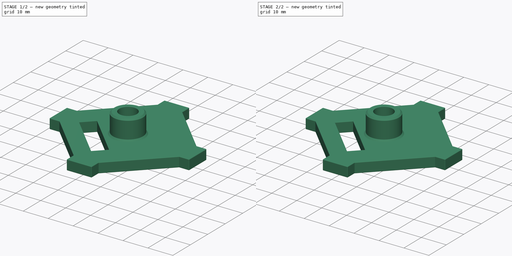
[diagram: build sequence overview — one tinted view per stage of 2, left to right]
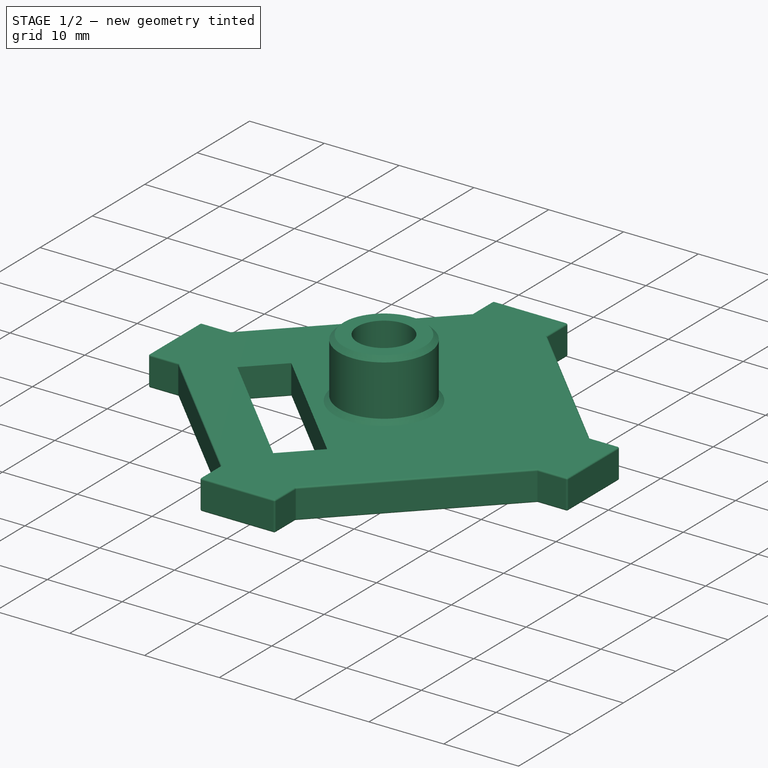
[diagram: stage 1 of 2 — iso view after this stage's code; geometry added in this stage tinted green]
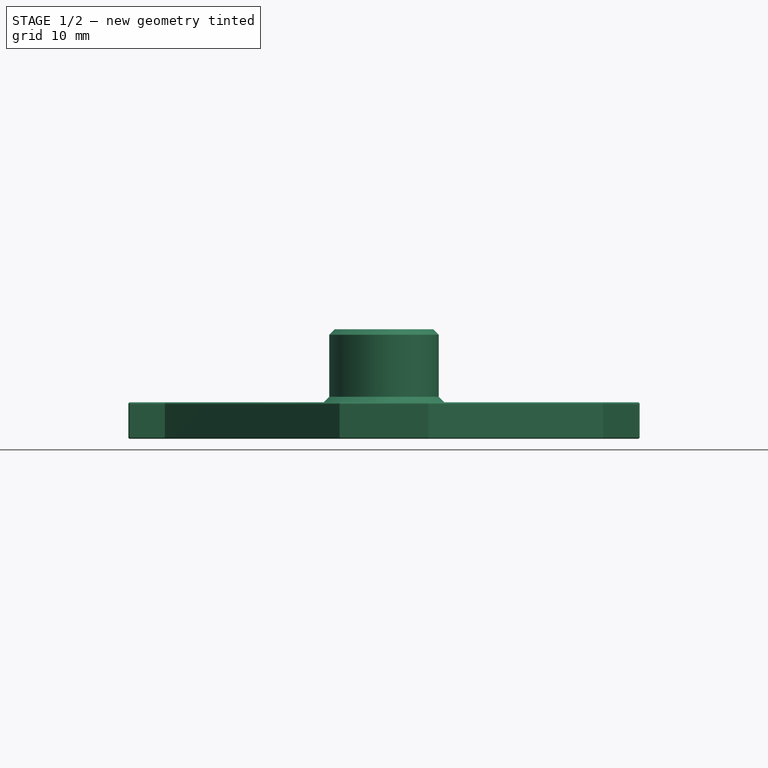
[diagram: stage 1 of 2 — front view after this stage's code; geometry added in this stage tinted green]
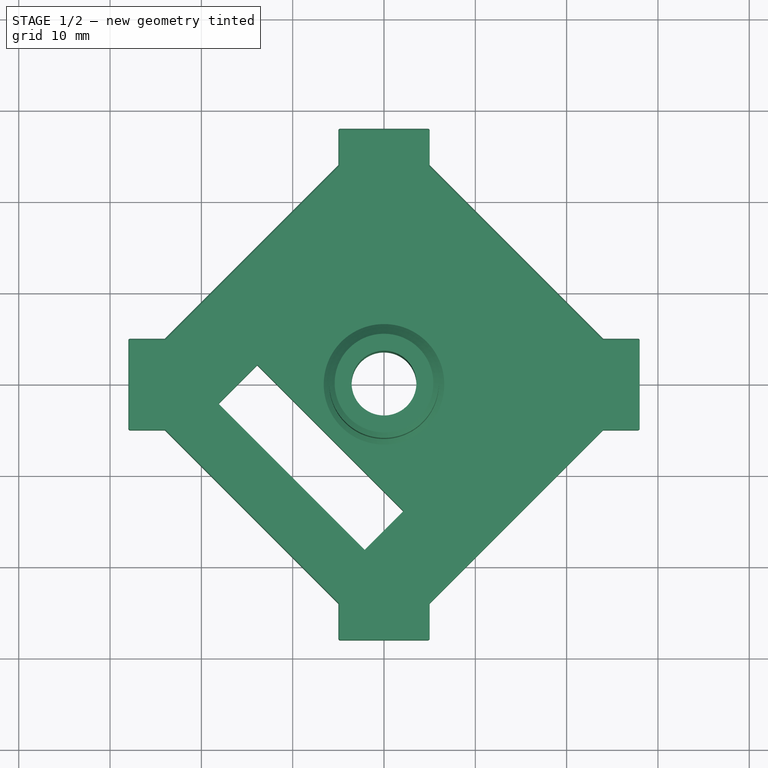
[diagram: stage 1 of 2 — top view after this stage's code; geometry added in this stage tinted green]
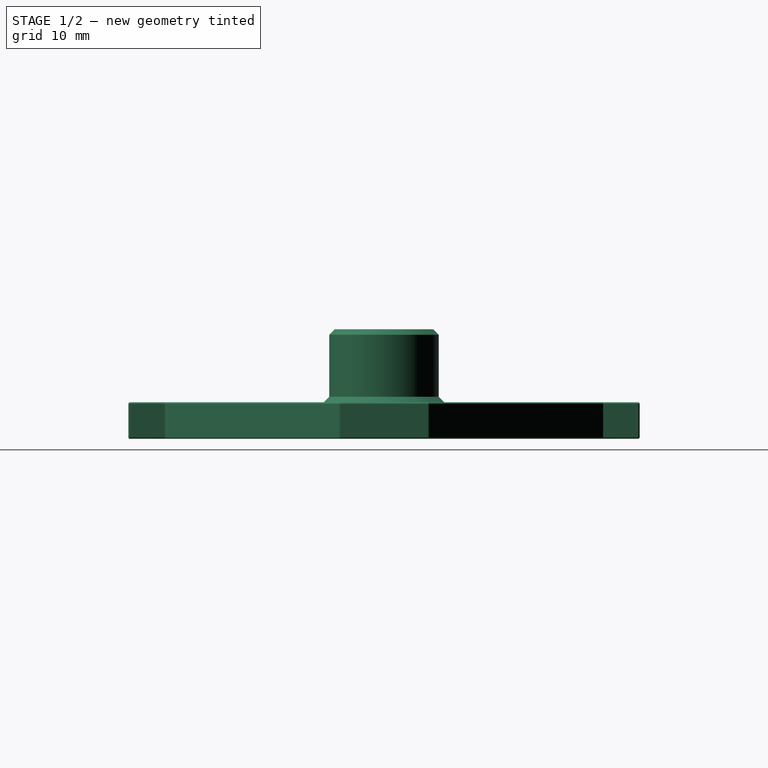
[diagram: stage 1 of 2 — right view after this stage's code; geometry added in this stage tinted green]
FCSTD DOCUMENT  (FreeCAD 0.18R16131 (Git))
Label: Turnstile_cap_V2
License: All rights reserved
LicenseURL: http://en.wikipedia.org/wiki/All_rights_reserved
objects: Sketcher::SketchObject×5, PartDesign::Pocket×3, PartDesign::Fillet×3, PartDesign::Pad×2, App::Part×1, PartDesign::Body×1, PartDesign::Chamfer×1
note: 20 computed .brp shape members not serialized (recipe doc carries the construction recipe); baked Part::Feature solids carry a one-line shape summary decoded from their .brp

FEATURE [App::Part] Part
  Group = -> [Body]
  Origin = -> Origin
FEATURE [PartDesign::Body] Body
  Group = -> [Sketch001,Pad,Sketch,Pad001,Sketch002,Pocket,Sketch003,Pocket001,Fillet,Chamfer,Sketch004,Pocket002,Fillet001,Fillet002]
  Origin = -> Origin001
  Tip = -> Fillet002
FEATURE [Sketcher::SketchObject] Sketch001  label="contour"
  MapMode = 5
  Placement = pos=(0,0,0) rot=(1,0,0;3.14159rad)
  Support = -> [Chamfer]
  sketch-geometry (16):
    g0: LineSegment StartX=-5 StartY=28 StartZ=0 EndX=5 EndY=28 EndZ=0
    g1: LineSegment StartX=28 StartY=5 StartZ=0 EndX=28 EndY=-5 EndZ=0
    g2: LineSegment StartX=5 StartY=-28 StartZ=0 EndX=-5 EndY=-28 EndZ=0
    g3: LineSegment StartX=-28 StartY=-5 StartZ=0 EndX=-28 EndY=5 EndZ=0
    g4: LineSegment StartX=-28 StartY=5 StartZ=0 EndX=-24 EndY=5 EndZ=0
    g5: LineSegment StartX=-24 StartY=5 StartZ=0 EndX=-5 EndY=24 EndZ=0
    g6: LineSegment StartX=-5 StartY=24 StartZ=0 EndX=-5 EndY=28 EndZ=0
    g7: LineSegment StartX=5 StartY=28 StartZ=0 EndX=5 EndY=24 EndZ=0
    g8: LineSegment StartX=5 StartY=24 StartZ=0 EndX=24 EndY=5 EndZ=0
    g9: LineSegment StartX=24 StartY=5 StartZ=0 EndX=28 EndY=5 EndZ=0
    g10: LineSegment StartX=-28 StartY=-5 StartZ=0 EndX=-24 EndY=-5 EndZ=0
    g11: LineSegment StartX=-24 StartY=-5 StartZ=0 EndX=-5 EndY=-24 EndZ=0
    g12: LineSegment StartX=-5 StartY=-24 StartZ=0 EndX=-5 EndY=-28 EndZ=0
    g13: LineSegment StartX=5 StartY=-28 StartZ=0 EndX=5 EndY=-24 EndZ=0
    g14: LineSegment StartX=5 StartY=-24 StartZ=0 EndX=24 EndY=-5 EndZ=0
    g15: LineSegment StartX=24 StartY=-5 StartZ=0 EndX=28 EndY=-5 EndZ=0
  constraints (44):
    c: Symmetric(g0,g0,g-2)
    c: Symmetric(g2,g2,g-2)
    c: Symmetric(g3,g3,g-1)
    c: Symmetric(g1,g1,g-1)
    c: DistanceY(g-1,g0) = 28
    c: DistanceY(g2,g-1) = 28
    c: DistanceX(g3,g-1) = 28
    c: DistanceX(g-1,g1) = 28
    c: DistanceX(g0,g0) = 10
    c: DistanceX(g2,g2) = 10
    c: DistanceY(g3,g3) = 10
    c: DistanceY(g1,g1) = 10
    c: Coincident(g4,g5)
    c: Coincident(g5,g6)
    c: Coincident(g3,g4)
    c: Coincident(g0,g6)
    c: Vertical(g6)
    c: Horizontal(g4)
    c: DistanceX(g4,g4) = 4
    c: DistanceY(g6,g6) = 4
    c: Coincident(g7,g8)
    c: Coincident(g8,g9)
    c: Coincident(g7,g0)
    c: Horizontal(g9)
    c: Vertical(g7)
    c: DistanceX(g9,g9) = 4
    c: DistanceY(g7,g7) = 4
    c: Coincident(g9,g1)
    c: Coincident(g10,g11)
    c: Coincident(g11,g12)
    c: Coincident(g10,g3)
    c: Coincident(g12,g2)
    c: Horizontal(g10)
    c: Vertical(g12)
    c: DistanceX(g10,g10) = 4
    c: DistanceY(g12,g12) = 4
    c: Coincident(g13,g14)
    c: Coincident(g14,g15)
    c: Coincident(g1,g15)
    c: Coincident(g13,g2)
    c: Vertical(g13)
    c: Horizontal(g15)
    c: DistanceX(g15,g15) = 4
    c: DistanceY(g13,g13) = 4
FEATURE [PartDesign::Pad] Pad
  Length = 4
  Length2 = 100
  Profile = -> Sketch001
  Type = 0
FEATURE [Sketcher::SketchObject] Sketch
  MapMode = 5
  Placement = pos=(28,0,0) rot=(0.57735,0.57735,0.57735;2.0944rad)
  Support = -> [Pad]
  sketch-geometry (1):
    g0: Circle CenterX=0 CenterY=0 CenterZ=0 NormalX=0 NormalY=0 NormalZ=1 AngleXU=0 Radius=6
  constraints (2):
    c: Coincident(g0,g-1)
    c: Radius(g0) = 6
FEATURE [PartDesign::Pad] Pad001
  BaseFeature = -> Pad
  Length = 8
  Length2 = 100
  Profile = -> Sketch
  Type = 0
FEATURE [Sketcher::SketchObject] Sketch002
  MapMode = 5
  Placement = pos=(0,0,12) rot=(0,0,1;0rad)
  Support = -> [Pad001]
  sketch-geometry (1):
    g0: Circle CenterX=0 CenterY=0 CenterZ=0 NormalX=0 NormalY=0 NormalZ=1 AngleXU=0 Radius=3.55
  constraints (2):
    c: Coincident(g0,g-1)
    c: Radius(g0) = 3.55
FEATURE [PartDesign::Pocket] Pocket
  BaseFeature = -> Pad001
  Length = 20
  Length2 = 100
  Profile = -> Sketch002
  Type = 0
FEATURE [Sketcher::SketchObject] Sketch003
  ExternalGeometry = -> [Pocket]
  MapMode = 5
  Support = -> [Pocket]
  sketch-geometry (9):
    g0: GeomPoint X=0 Y=24 Z=0
    g1: Circle CenterX=0 CenterY=24 CenterZ=0 NormalX=0 NormalY=0 NormalZ=1 AngleXU=0 Radius=1.1
    g2: GeomPoint X=24 Y=0 Z=0
    g3: GeomPoint X=24 Y=0 Z=0
    g4: GeomPoint X=0 Y=-24 Z=0
    g5: Circle CenterX=24 CenterY=0 CenterZ=0 NormalX=0 NormalY=0 NormalZ=1 AngleXU=0 Radius=1.1
    g6: GeomPoint X=-24 Y=0 Z=0
    g7: Circle CenterX=-24 CenterY=0 CenterZ=0 NormalX=0 NormalY=0 NormalZ=1 AngleXU=0 Radius=1.1
    g8: Circle CenterX=0 CenterY=-24 CenterZ=0 NormalX=0 NormalY=0 NormalZ=1 AngleXU=0 Radius=1.1
  constraints (17):
    c: PointOnObject(g0,g-2)
    c: DistanceY(g0,g-4) = 4
    c: Coincident(g1,g0)
    c: Radius(g1) = 1.1
    c: PointOnObject(g2,g-1)
    c: PointOnObject(g4,g-2)
    c: DistanceY(g-7,g4) = 4
    c: DistanceX(g3,g-8) = 4
    c: Coincident(g3,g5)
    c: Coincident(g3,g2)
    c: PointOnObject(g6,g-1)
    c: DistanceX(g-5,g6) = 4
    c: Coincident(g7,g6)
    c: Radius(g7) = 1.1
    c: Coincident(g8,g4)
    c: Radius(g8) = 1.1
    c: Radius(g5) = 1.1
FEATURE [PartDesign::Pocket] Pocket001
  BaseFeature = -> Pocket
  Length = 3.5
  Length2 = 100
  Profile = -> Sketch003
  Type = 0
FEATURE [PartDesign::Fillet] Fillet
  Base = -> Pocket001 [Edge41,Edge23,Edge54,Edge40,Edge38,Edge22,Edge20,Edge36,Edge18,Edge48,Edge34,Edge16,Edge46,Edge32,Edge30,Edge12,Edge9,Edge10,Edge2,Edge4,Edge7,Edge29,Edge31,Edge33,Edge35,Edge37,Edge39,Edge53,Edge3,Edge1,Edge6,Edge11,Edge13,Edge45,Edge15,Edge47,Edge19,Edge17,Edge21,Edge14]
  BaseFeature = -> Pocket001
  Radius = 0.2
FEATURE [PartDesign::Chamfer] Chamfer
  Base = -> Fillet [Face50]
  BaseFeature = -> Fillet
  Size = 0.6
FEATURE [Sketcher::SketchObject] Sketch004
  MapMode = 5
  Placement = pos=(0,0,4) rot=(0,0,1;0rad)
  Support = -> [Chamfer]
  sketch-geometry (6):
    g0: GeomPoint X=-16 Y=0 Z=0
    g1: GeomPoint X=0 Y=-16 Z=0
    g2: LineSegment StartX=-13.8787 StartY=2.12132 StartZ=0 EndX=-18.1213 EndY=-2.12132 EndZ=0
    g3: LineSegment StartX=2.12132 StartY=-13.8787 StartZ=0 EndX=-2.12132 EndY=-18.1213 EndZ=0
    g4: LineSegment StartX=-18.1213 StartY=-2.12132 StartZ=0 EndX=-2.12132 EndY=-18.1213 EndZ=0
    g5: LineSegment StartX=-13.8787 StartY=2.12132 StartZ=0 EndX=2.12132 EndY=-13.8787 EndZ=0
  constraints (14):
    c: PointOnObject(g0,g-1)
    c: PointOnObject(g1,g-2)
    c: DistanceX(g0,g-1) = 16
    c: DistanceY(g1,g-1) = 16
    c: Angle(g-1,g2) = 0.785398
    c: Angle(g-2,g3) = 2.35619
    c: Symmetric(g3,g3,g1)
    c: Coincident(g4,g2)
    c: Coincident(g2,g5)
    c: Coincident(g5,g3)
    c: Coincident(g3,g4)
    c: Symmetric(g2,g2,g0)
    c: Distance(g2,g2) = 6
    c: Distance(g3,g3) = 6
FEATURE [PartDesign::Pocket] Pocket002
  BaseFeature = -> Chamfer
  Length = 5
  Length2 = 100
  Profile = -> Sketch004
  Type = 0
FEATURE [PartDesign::Fillet] Fillet001
  Base = -> Pocket002 [Edge69,Edge68,Edge65,Edge71]
  BaseFeature = -> Pocket002
  Radius = 0.2
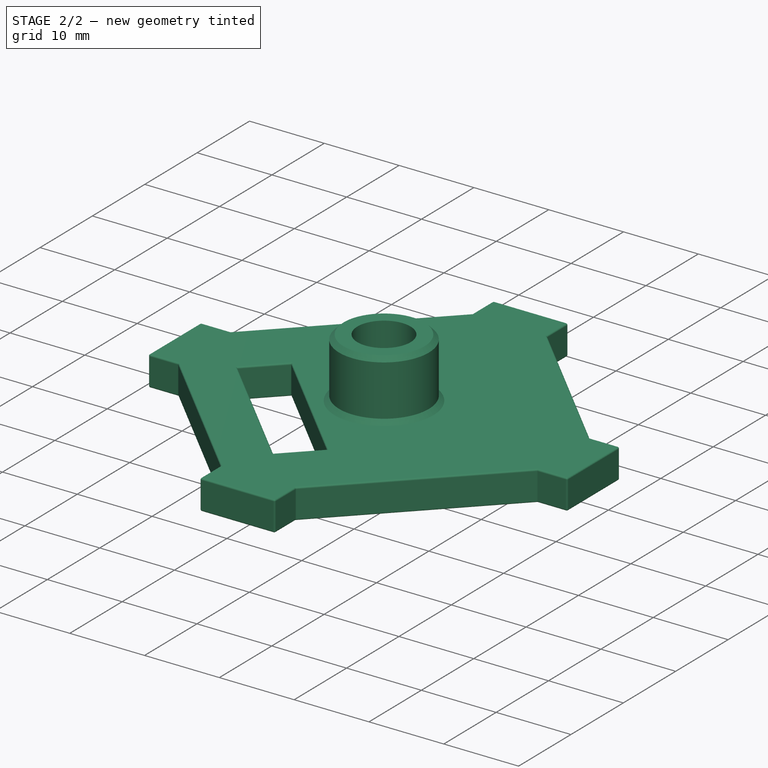
[diagram: stage 2 of 2 — iso view after this stage's code; geometry added in this stage tinted green]
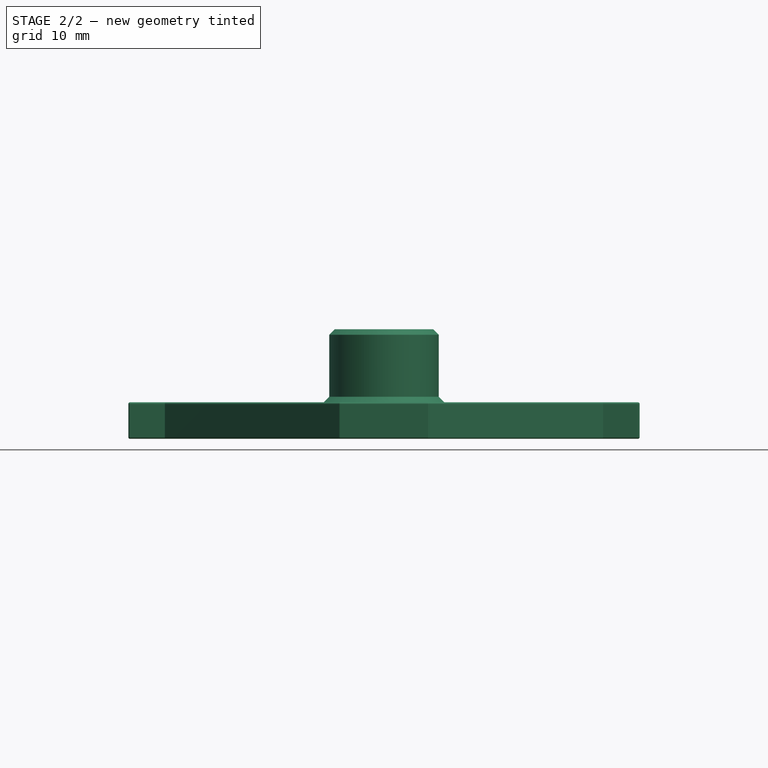
[diagram: stage 2 of 2 — front view after this stage's code; geometry added in this stage tinted green]
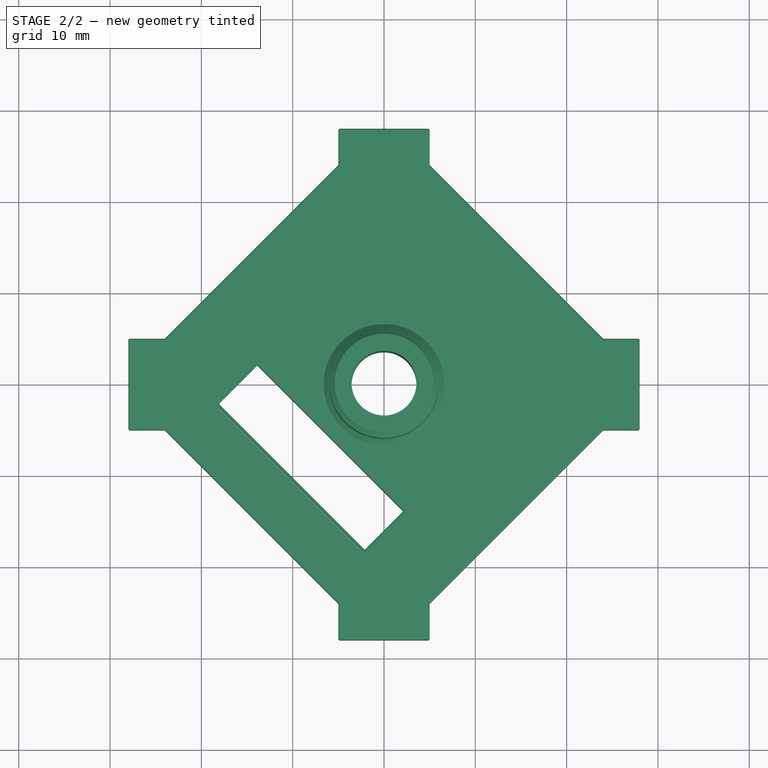
[diagram: stage 2 of 2 — top view after this stage's code; geometry added in this stage tinted green]
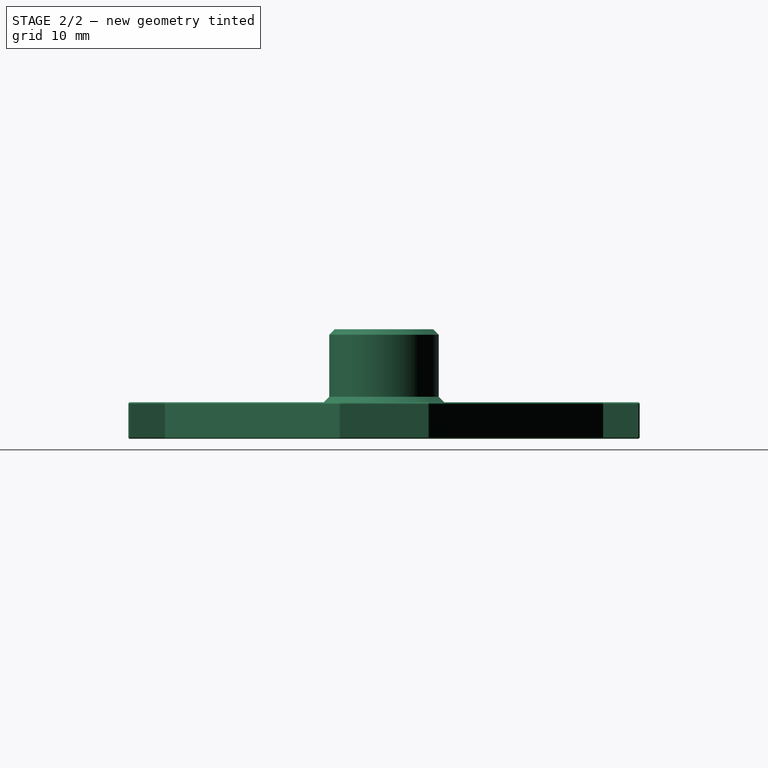
[diagram: stage 2 of 2 — right view after this stage's code; geometry added in this stage tinted green]
FEATURE [PartDesign::Fillet] Fillet002
  Base = -> Fillet001 [Edge29,Edge3,Edge7,Edge28]
  BaseFeature = -> Fillet001
  Radius = 0.2
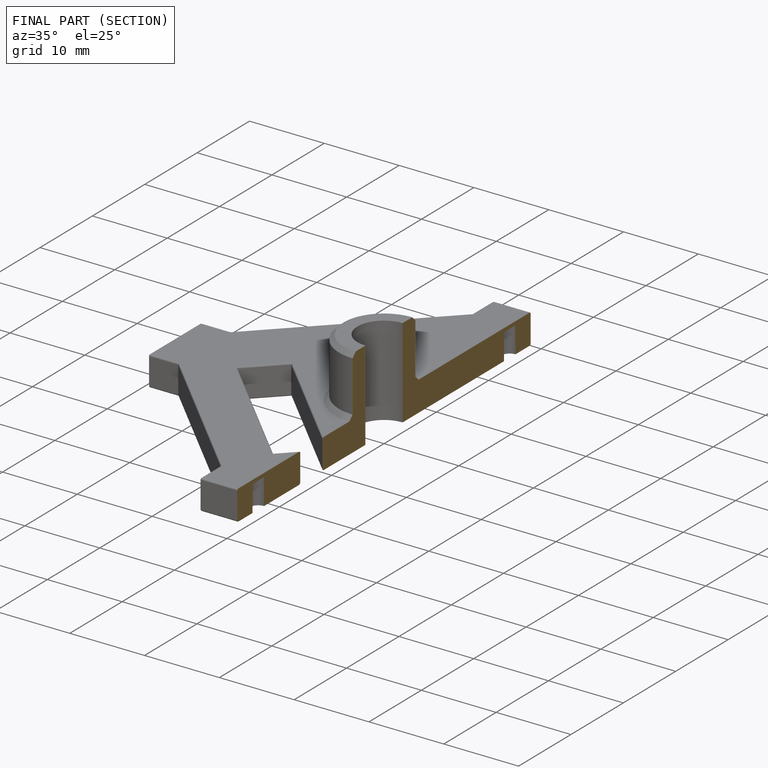
[diagram: finished part — half-section view (interior)]
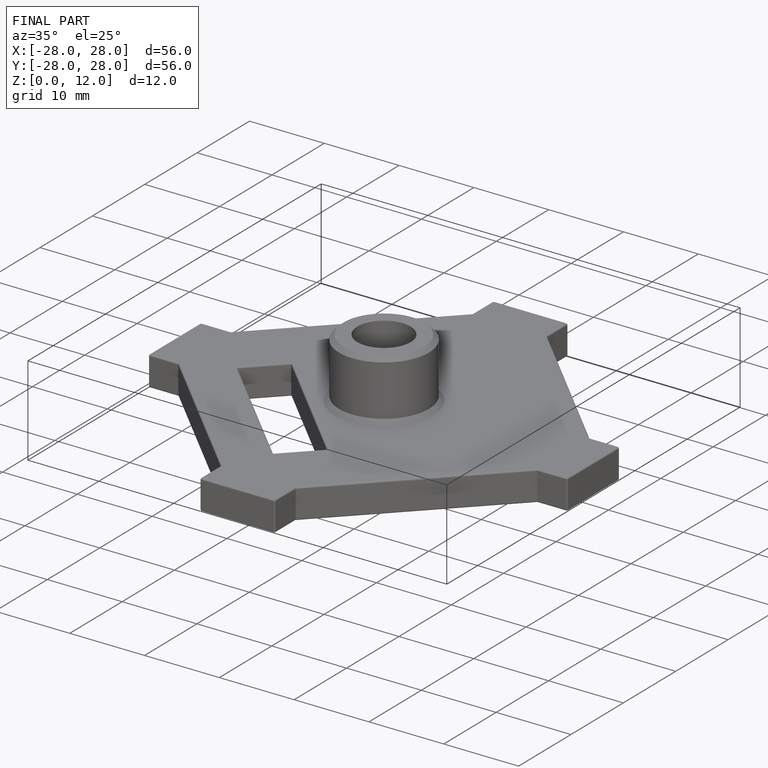
[diagram: finished part — iso view with bounding-box wireframe]
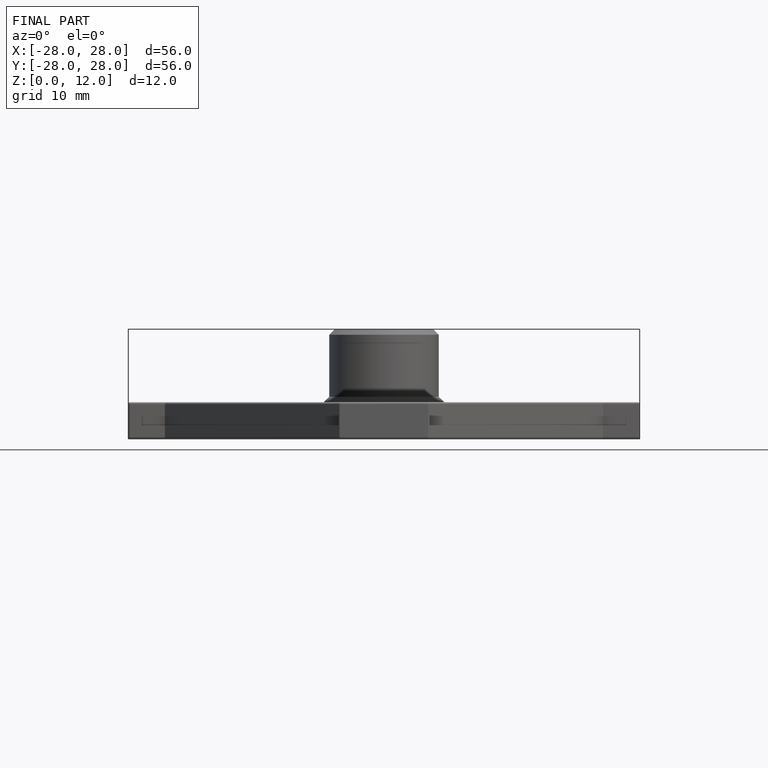
[diagram: finished part — front view with bounding-box wireframe]
